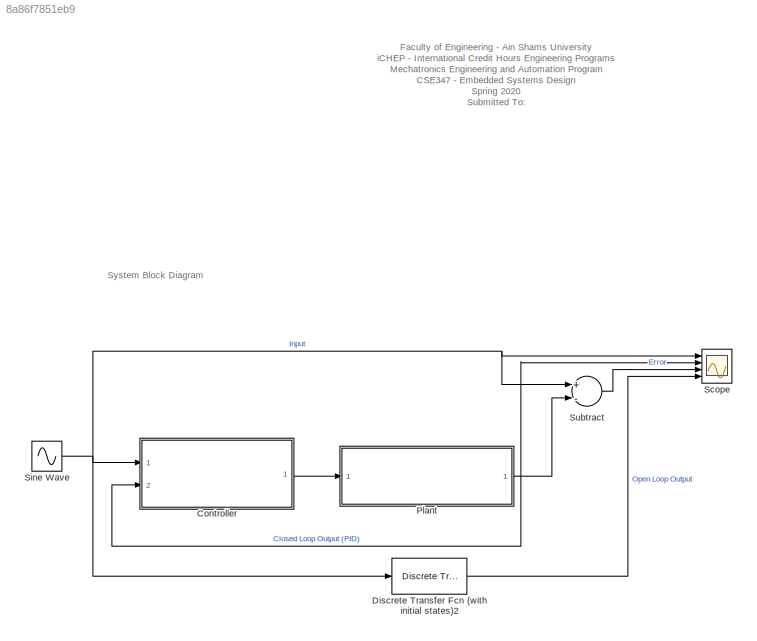
MODEL slx_8a86f7851eb9
KIND model
CONFIG AbsTol = auto
CONFIG EnableMultiTasking = off
CONFIG FixedStep = 0.01
CONFIG MaxStep = auto
CONFIG MinStep = auto
CONFIG RelTol = 1e-3
CONFIG SampleTimeConstraint = Unconstrained
CONFIG Solver = VariableStepAuto
CONFIG SolverName = VariableStepAuto
CONFIG StartTime = 0.0
CONFIG StopTime = 30
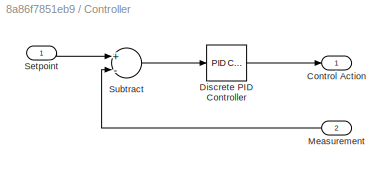
BLOCK [SubSystem] Controller
  Ports = [2, 1]
  RequestExecContextInheritance = off
BLOCK [Outport] Controller/Control Action
  IconDisplay = Port number
BLOCK [Reference] Controller/Discrete PID Controller  REF=simulink/Continuous/PID Controller
  Ports = [1, 1]
  SourceBlock = simulink/Continuous/PID Controller
  SourceProductBaseCode = SL
  SourceProductName = Simulink
  SourceType = PID 1dof
BLOCK [Inport] Controller/Measurement
  IconDisplay = Port number
  Port = 2
BLOCK [Inport] Controller/Setpoint
  IconDisplay = Port number
BLOCK [Sum] Controller/Subtract
  InputSameDT = off
  Inputs = +-
  OutDataTypeStr = Inherit: Inherit via back propagation
  Ports = [2, 1]
  SaturateOnIntegerOverflow = off
BLOCK [Reference] Discrete Transfer Fcn (with initial states)2  REF=simulink_extras/Additional
Discrete/Discrete
Transfer Fcn
(with initial states)
  Ports = [1, 1]
  SourceBlock = simulink_extras/Additional\nDiscrete/Discrete\nTransfer Fcn\n(with initial states)
  SourceProductBaseCode = SL
  SourceProductName = Simulink
  SourceType = Discrete Transfer Function with Initial States
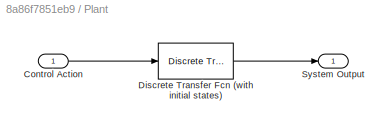
BLOCK [SubSystem] Plant
  Ports = [1, 1]
  RequestExecContextInheritance = off
BLOCK [Inport] Plant/Control Action
  IconDisplay = Port number
BLOCK [Reference] Plant/Discrete Transfer Fcn (with initial states)  REF=simulink_extras/Additional
Discrete/Discrete
Transfer Fcn
(with initial states)
  Ports = [1, 1]
  SourceBlock = simulink_extras/Additional\nDiscrete/Discrete\nTransfer Fcn\n(with initial states)
  SourceProductBaseCode = SL
  SourceProductName = Simulink
  SourceType = Discrete Transfer Function with Initial States
BLOCK [Outport] Plant/System Output
  IconDisplay = Port number
BLOCK [Scope] Scope
  Floating = off
  NumInputPorts = 4
  Ports = [4]
  ScopeSpecificationString = Simulink.scopes.TimeScopeBlockCfg('CurrentConfiguration', extmgr.ConfigurationSet(extmgr.Configuration('Core','General UI',true),extmgr.Configuration('Core','Source UI',true),extmgr.Configuration('Sources','WiredSimulink',true),extmgr.Configuration('Visuals','Time Domain',true,'SerializedDisplays',{struct('MinYLimReal','-1.24999','MaxYLimReal','1.24999','YLabelReal','','MinYLimMag','0.00000','MaxY...<+4663ch>
BLOCK [Sin] Sine Wave
  Ports = [0, 1]
  SampleTime = 0.1
BLOCK [Sum] Subtract
  InputSameDT = off
  Inputs = +-
  OutDataTypeStr = Inherit: Inherit via back propagation
  Ports = [2, 1]
  SaturateOnIntegerOverflow = off
ANNOTATION (root): Faculty of Engineering - Ain Shams University iCHEP - International Credit Hours Engineering Programs Mechatronics Engineering and Automation Program CSE347 - Embedded Systems Design Spring 2020 Submitted To: Dr. Sherif Hammad Submitted By: 16P8167 - Salma Ahmed Ibrahim 16P8104 - Haidy Sorial Samy 16P3084 - Laila Ayman Elsayed 16P8170 - Omar Mostafa Hosny 16P8202 - Michael Samy Hannalla
ANNOTATION (root): System Block Diagram
LINE Controller/Discrete PID Controller:1 -> Controller/Control Action:1
LINE Controller/Measurement:1 -> Controller/Subtract:2
LINE Controller/Setpoint:1 -> Controller/Subtract:1
LINE Controller/Subtract:1 -> Controller/Discrete PID Controller:1
LINE Controller:1 -> Plant:1
LINE Discrete Transfer Fcn (with initial states)2:1 -> Scope:4
LINE Plant/Control Action:1 -> Plant/Discrete Transfer Fcn (with initial states):1
LINE Plant/Discrete Transfer Fcn (with initial states):1 -> Plant/System Output:1
NET Plant:1 -> Controller:2, Scope:2, Subtract:2
NET Sine Wave:1 -> Controller:1, Discrete Transfer Fcn (with initial states)2:1, Scope:1, Subtract:1
LINE Subtract:1 -> Scope:3
note: NET lines group one-source signal fan-out (src -> all destinations, sorted); 1:1 wires keep LINE
